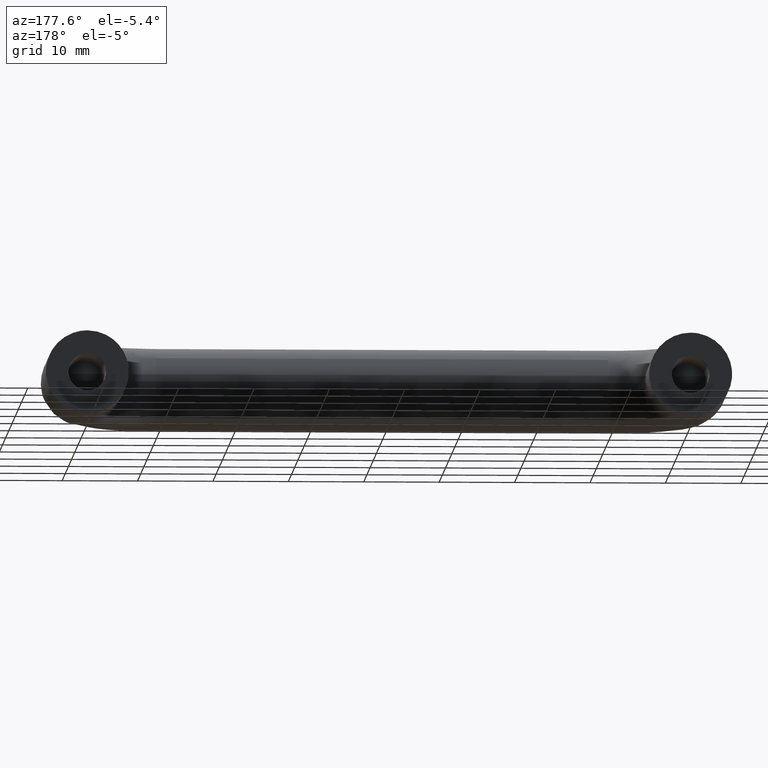
[diagram: clean part render]
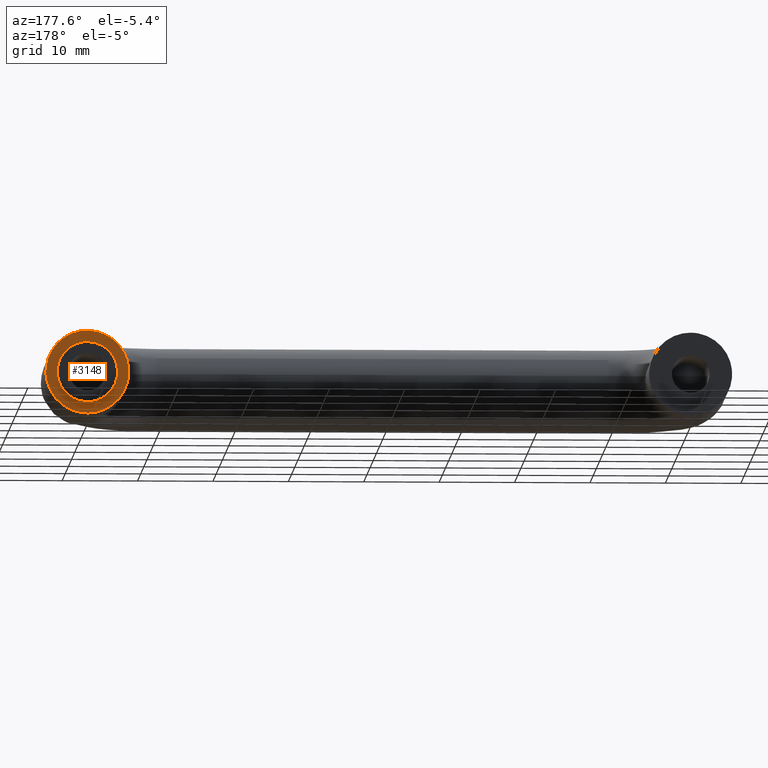
[diagram: same view with one face highlighted and labeled with its STEP entity id]
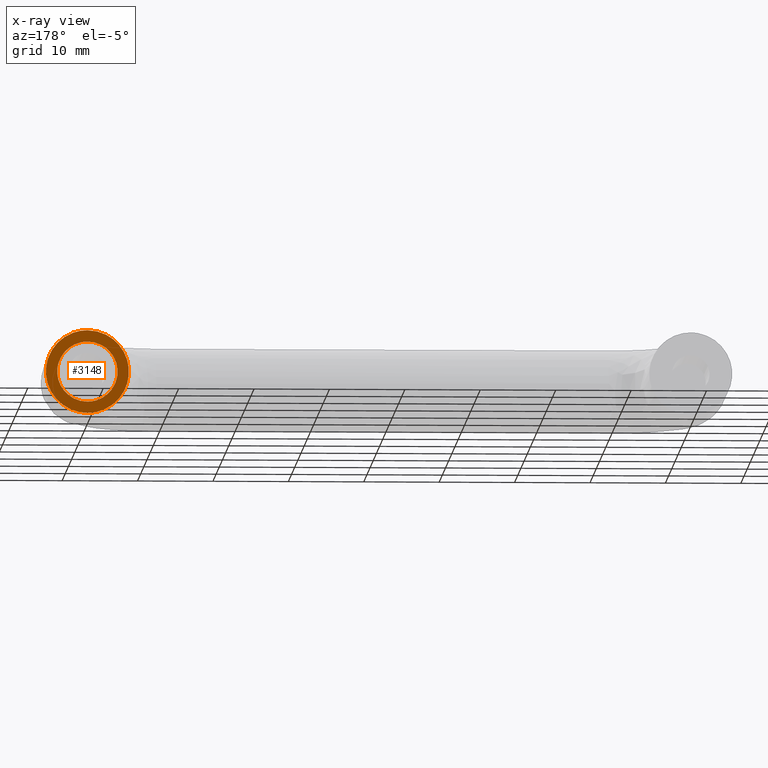
[diagram: x-ray of the same camera — body ghosted, the highlighted face saturated]
A machine part, auxiliary view. The second image highlights one B-rep face of the part: STEP entity #3148.
The next image is the same camera in x-ray: the body ghosted, the highlighted face saturated — about 0% of this face is hidden behind the body in this view.
In plain terms, the highlighted face is a freeform B-spline surface patch.
Its self-contained STEP definition (entity closure, byte-faithful):
#1423=CARTESIAN_POINT('',(77.113385511570854,3.243754E-016,2.769017297741192));
#1424=VERTEX_POINT('',#1423);
#1430=CARTESIAN_POINT('',(80.0,0.0,4.0));
#1431=VERTEX_POINT('',#1430);
#1432=CARTESIAN_POINT('',(80.0,0.0,4.0));
#1433=CARTESIAN_POINT('',(78.294219464091213,0.0,4.0));
#1434=CARTESIAN_POINT('',(77.113385511570755,0.0,2.769017297741278));
#1442=(BOUNDED_CURVE()B_SPLINE_CURVE(2,(#1432,#1433,#1434),.UNSPECIFIED.,.F.,.U.)B_SPLINE_CURVE_WITH_KNOTS((3,3),(0.0,0.128137072741580),.UNSPECIFIED.)CURVE()GEOMETRIC_REPRESENTATION_ITEM()RATIONAL_B_SPLINE_CURVE((1.0,0.849878081261541,0.853645628295046))REPRESENTATION_ITEM(''));
#1443=EDGE_CURVE('',#1431,#1424,#1442,.T.);
#1445=CARTESIAN_POINT('',(80.0,0.0,-4.0));
#1446=VERTEX_POINT('',#1445);
#1447=CARTESIAN_POINT('',(80.0,0.0,-4.0));
#1448=CARTESIAN_POINT('',(84.000000000000014,0.0,-4.000000000000000));
#1449=CARTESIAN_POINT('',(84.0,0.0,0.0));
#1450=CARTESIAN_POINT('',(84.000000000000014,0.0,4.000000000000000));
#1451=CARTESIAN_POINT('',(80.0,0.0,4.0));
#1459=(BOUNDED_CURVE()B_SPLINE_CURVE(2,(#1447,#1448,#1449,#1450,#1451),.UNSPECIFIED.,.F.,.U.)B_SPLINE_CURVE_WITH_KNOTS((3,2,3),(0.500000000000000,0.750000000000000,1.0),.UNSPECIFIED.)CURVE()GEOMETRIC_REPRESENTATION_ITEM()RATIONAL_B_SPLINE_CURVE((1.0,0.707106781186548,1.0,0.707106781186548,1.0))REPRESENTATION_ITEM(''));
#1460=EDGE_CURVE('',#1446,#1431,#1459,.T.);
#1462=CARTESIAN_POINT('',(76.012330665080157,3.330669E-016,0.313836383072271));
#1463=VERTEX_POINT('',#1462);
#1464=CARTESIAN_POINT('',(76.012330665080157,3.330669E-016,0.313836383072271));
#1465=CARTESIAN_POINT('',(76.0,0.0,0.157160428192316));
#1466=CARTESIAN_POINT('',(76.0,0.0,0.0));
#1467=CARTESIAN_POINT('',(76.0,0.0,-4.000000000000000));
#1468=CARTESIAN_POINT('',(80.0,0.0,-4.0));
#1476=(BOUNDED_CURVE()B_SPLINE_CURVE(2,(#1464,#1465,#1466,#1467,#1468),.UNSPECIFIED.,.F.,.U.)B_SPLINE_CURVE_WITH_KNOTS((3,2,3),(0.236331300618934,0.250000000000000,0.500000000000000),.UNSPECIFIED.)CURVE()GEOMETRIC_REPRESENTATION_ITEM()RATIONAL_B_SPLINE_CURVE((0.969723356142947,0.983986122565145,1.0,0.707106781186548,1.0))REPRESENTATION_ITEM(''));
#1477=EDGE_CURVE('',#1463,#1446,#1476,.T.);
#1579=CARTESIAN_POINT('',(77.113385511570769,0.0,2.769017297741278));
#1580=CARTESIAN_POINT('',(76.124418719382419,0.0,1.738050148047083));
#1581=CARTESIAN_POINT('',(76.012330665080157,3.330669E-016,0.313836383072271));
#1589=(BOUNDED_CURVE()B_SPLINE_CURVE(2,(#1579,#1580,#1581),.UNSPECIFIED.,.F.,.U.)B_SPLINE_CURVE_WITH_KNOTS((3,3),(0.128137072741580,0.236331300618934),.UNSPECIFIED.)CURVE()GEOMETRIC_REPRESENTATION_ITEM()RATIONAL_B_SPLINE_CURVE((0.853645628295045,0.856826806337904,0.969723356142947))REPRESENTATION_ITEM(''));
#1590=EDGE_CURVE('',#1424,#1463,#1589,.T.);
#2147=CARTESIAN_POINT('',(74.525320908992796,-3.885781E-016,0.527151638988686));
#2148=VERTEX_POINT('',#2147);
#2154=CARTESIAN_POINT('',(80.0,0.0,-5.500000000000000));
#2155=VERTEX_POINT('',#2154);
#2156=CARTESIAN_POINT('',(74.525320908992796,-3.885781E-016,0.527151638988686));
#2157=CARTESIAN_POINT('',(74.500000000000014,0.0,0.264183944796869));
#2158=CARTESIAN_POINT('',(74.500000000000000,0.0,0.0));
#2159=CARTESIAN_POINT('',(74.500000000000000,0.0,-5.500000000000001));
#2160=CARTESIAN_POINT('',(80.0,0.0,-5.500000000000000));
#2168=(BOUNDED_CURVE()B_SPLINE_CURVE(2,(#2156,#2157,#2158,#2159,#2160),.UNSPECIFIED.,.F.,.U.)B_SPLINE_CURVE_WITH_KNOTS((3,2,3),(0.733348904757510,0.750000000000000,1.0),.UNSPECIFIED.)CURVE()GEOMETRIC_REPRESENTATION_ITEM()RATIONAL_B_SPLINE_CURVE((0.963582689676648,0.980492028470631,1.0,0.707106781186548,1.0))REPRESENTATION_ITEM(''));
#2169=EDGE_CURVE('',#2148,#2155,#2168,.T.);
#2171=CARTESIAN_POINT('',(80.0,0.0,5.500000000000000));
#2172=VERTEX_POINT('',#2171);
#2173=CARTESIAN_POINT('',(80.0,0.0,-5.500000000000000));
#2174=CARTESIAN_POINT('',(85.500000000000000,0.0,-5.500000000000001));
#2175=CARTESIAN_POINT('',(85.500000000000000,0.0,0.0));
#2176=CARTESIAN_POINT('',(85.500000000000000,0.0,5.500000000000001));
#2177=CARTESIAN_POINT('',(80.0,0.0,5.500000000000000));
#2185=(BOUNDED_CURVE()B_SPLINE_CURVE(2,(#2173,#2174,#2175,#2176,#2177),.UNSPECIFIED.,.F.,.U.)B_SPLINE_CURVE_WITH_KNOTS((3,2,3),(0.0,0.250000000000000,0.500000000000000),.UNSPECIFIED.)CURVE()GEOMETRIC_REPRESENTATION_ITEM()RATIONAL_B_SPLINE_CURVE((1.0,0.707106781186548,1.0,0.707106781186548,1.0))REPRESENTATION_ITEM(''));
#2186=EDGE_CURVE('',#2155,#2172,#2185,.T.);
#2188=CARTESIAN_POINT('',(75.850893759727001,-4.198484E-016,3.610390201476344));
#2189=VERTEX_POINT('',#2188);
#2190=CARTESIAN_POINT('',(80.0,0.0,5.500000000000000));
#2191=CARTESIAN_POINT('',(77.495158405201352,0.0,5.500000000000000));
#2192=CARTESIAN_POINT('',(75.850893759727001,-4.198484E-016,3.610390201476344));
#2200=(BOUNDED_CURVE()B_SPLINE_CURVE(2,(#2190,#2191,#2192),.UNSPECIFIED.,.F.,.U.)B_SPLINE_CURVE_WITH_KNOTS((3,3),(0.500000000000000,0.635463083272083),.UNSPECIFIED.)CURVE()GEOMETRIC_REPRESENTATION_ITEM()RATIONAL_B_SPLINE_CURVE((1.0,0.841295126040179,0.854579464535596))REPRESENTATION_ITEM(''));
#2201=EDGE_CURVE('',#2172,#2189,#2200,.T.);
#2239=CARTESIAN_POINT('',(75.850893759727001,-4.198484E-016,3.610390201476344));
#2240=CARTESIAN_POINT('',(74.694208119804927,0.0,2.281112384173726));
#2241=CARTESIAN_POINT('',(74.525320908992796,-3.885781E-016,0.527151638988686));
#2249=(BOUNDED_CURVE()B_SPLINE_CURVE(2,(#2239,#2240,#2241),.UNSPECIFIED.,.F.,.U.)B_SPLINE_CURVE_WITH_KNOTS((3,3),(0.635463083272083,0.733348904757510),.UNSPECIFIED.)CURVE()GEOMETRIC_REPRESENTATION_ITEM()RATIONAL_B_SPLINE_CURVE((0.854579464535596,0.864178746901719,0.963582689676648))REPRESENTATION_ITEM(''));
#2250=EDGE_CURVE('',#2189,#2148,#2249,.T.);
#3131=CARTESIAN_POINT('',(73.951206859005183,0.0,-6.049449978679865));
#3132=CARTESIAN_POINT('',(73.951206859005183,0.0,6.049450273722857));
#3133=CARTESIAN_POINT('',(86.049419025527740,0.0,-6.049449978679865));
#3134=CARTESIAN_POINT('',(86.049419025527740,0.0,6.049450273722857));
#3135=B_SPLINE_SURFACE_WITH_KNOTS('',1,1,((#3131,#3133),(#3132,#3134)),.UNSPECIFIED.,.F.,.F.,.U.,(2,2),(2,2),(0.0,12.098900252402720),(0.0,12.098212166522559),.UNSPECIFIED.);
#3136=ORIENTED_EDGE('',*,*,#2169,.F.);
#3137=ORIENTED_EDGE('',*,*,#2250,.F.);
#3138=ORIENTED_EDGE('',*,*,#2201,.F.);
#3139=ORIENTED_EDGE('',*,*,#2186,.F.);
#3140=EDGE_LOOP('',(#3136,#3137,#3138,#3139));
#3141=FACE_OUTER_BOUND('',#3140,.T.);
#3142=ORIENTED_EDGE('',*,*,#1460,.T.);
#3143=ORIENTED_EDGE('',*,*,#1443,.T.);
#3144=ORIENTED_EDGE('',*,*,#1590,.T.);
#3145=ORIENTED_EDGE('',*,*,#1477,.T.);
#3146=EDGE_LOOP('',(#3142,#3143,#3144,#3145));
#3147=FACE_BOUND('',#3146,.T.);
#3148=ADVANCED_FACE('',(#3141,#3147),#3135,.T.);